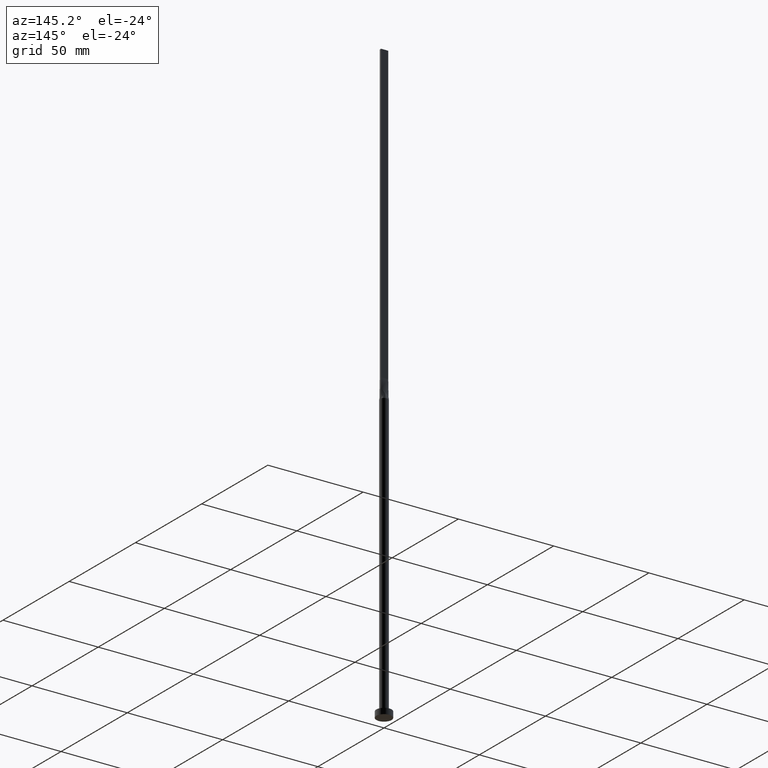
[diagram: clean part render]
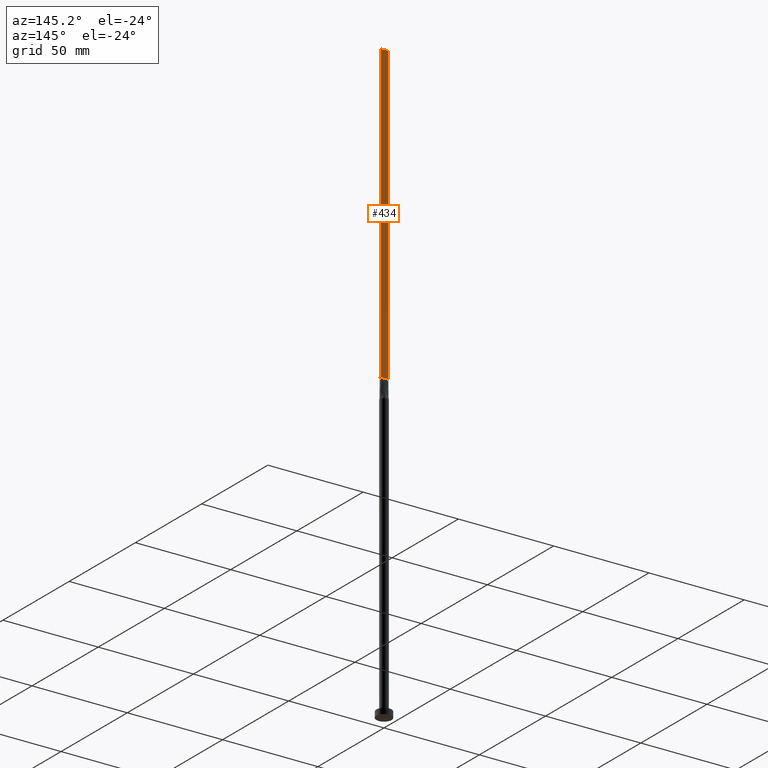
[diagram: same view with one face highlighted and labeled with its STEP entity id]
A machine part, auxiliary view. The second image highlights one B-rep face of the part: STEP entity #434.
In plain terms, the highlighted planar face has unit normal (0, -1, 0).
Its self-contained STEP definition (entity closure, byte-faithful):
#22 = VERTEX_POINT ( 'NONE', #322 ) ;
#26 = FACE_OUTER_BOUND ( 'NONE', #96, .T. ) ;
#41 = VECTOR ( 'NONE', #573, 1000.000000000000000 ) ;
#42 = ORIENTED_EDGE ( 'NONE', *, *, #512, .F. ) ;
#46 = DIRECTION ( 'NONE',  ( 0.000000000000000000, -0.000000000000000000, -1.000000000000000000 ) ) ;
#62 = VERTEX_POINT ( 'NONE', #569 ) ;
#65 = LINE ( 'NONE', #484, #316 ) ;
#68 = CARTESIAN_POINT ( 'NONE',  ( 1.899999999999999689, 0.5000000000000002220, 315.0000000000000000 ) ) ;
#78 = ORIENTED_EDGE ( 'NONE', *, *, #159, .F. ) ;
#80 = DIRECTION ( 'NONE',  ( -0.000000000000000000, -0.000000000000000000, -1.000000000000000000 ) ) ;
#84 = CARTESIAN_POINT ( 'NONE',  ( -1.899999999999999689, 0.5000000000000002220, 160.0000000000000000 ) ) ;
#96 = EDGE_LOOP ( 'NONE', ( #570, #78, #42, #299 ) ) ;
#104 = PLANE ( 'NONE',  #312 ) ;
#112 = CARTESIAN_POINT ( 'NONE',  ( -1.899999999999999689, 0.5000000000000002220, 315.0000000000000000 ) ) ;
#123 = CARTESIAN_POINT ( 'NONE',  ( 1.899999999999999689, 0.5000000000000002220, 315.0000000000000000 ) ) ;
#147 = VERTEX_POINT ( 'NONE', #354 ) ;
#159 = EDGE_CURVE ( 'NONE', #479, #147, #65, .T. ) ;
#201 = EDGE_CURVE ( 'NONE', #22, #62, #477, .T. ) ;
#264 = DIRECTION ( 'NONE',  ( -1.000000000000000000, -0.000000000000000000, -0.000000000000000000 ) ) ;
#280 = VECTOR ( 'NONE', #80, 1000.000000000000000 ) ;
#299 = ORIENTED_EDGE ( 'NONE', *, *, #201, .T. ) ;
#309 = LINE ( 'NONE', #84, #458 ) ;
#312 = AXIS2_PLACEMENT_3D ( 'NONE', #123, #373, #46 ) ;
#316 = VECTOR ( 'NONE', #389, 1000.000000000000000 ) ;
#322 = CARTESIAN_POINT ( 'NONE',  ( 1.899999999999999689, 0.5000000000000002220, 315.0000000000000000 ) ) ;
#347 = CARTESIAN_POINT ( 'NONE',  ( 1.899999999999999689, 0.5000000000000002220, 315.0000000000000000 ) ) ;
#354 = CARTESIAN_POINT ( 'NONE',  ( -1.899999999999999689, 0.5000000000000002220, 160.0000000000000000 ) ) ;
#373 = DIRECTION ( 'NONE',  ( 0.000000000000000000, -1.000000000000000000, 0.000000000000000000 ) ) ;
#389 = DIRECTION ( 'NONE',  ( -0.000000000000000000, -0.000000000000000000, -1.000000000000000000 ) ) ;
#416 = EDGE_CURVE ( 'NONE', #62, #147, #309, .T. ) ;
#430 = LINE ( 'NONE', #68, #41 ) ;
#434 = ADVANCED_FACE ( 'NONE', ( #26 ), #104, .F. ) ;
#458 = VECTOR ( 'NONE', #264, 1000.000000000000000 ) ;
#477 = LINE ( 'NONE', #347, #280 ) ;
#479 = VERTEX_POINT ( 'NONE', #112 ) ;
#484 = CARTESIAN_POINT ( 'NONE',  ( -1.899999999999999689, 0.5000000000000002220, 315.0000000000000000 ) ) ;
#512 = EDGE_CURVE ( 'NONE', #22, #479, #430, .T. ) ;
#569 = CARTESIAN_POINT ( 'NONE',  ( 1.899999999999999689, 0.5000000000000002220, 160.0000000000000000 ) ) ;
#570 = ORIENTED_EDGE ( 'NONE', *, *, #416, .T. ) ;
#573 = DIRECTION ( 'NONE',  ( -1.000000000000000000, 0.000000000000000000, 0.000000000000000000 ) ) ;